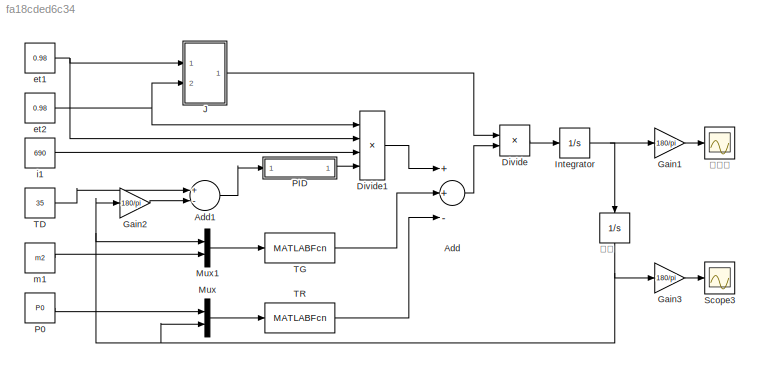
MODEL slx_fa18cded6c34
KIND model
BLOCK [Sum] Add
  InputSameDT = off
  Inputs = ++-
  OutDataTypeStr = Inherit: Inherit via internal rule
  Ports = [3, 1]
  SaturateOnIntegerOverflow = off
BLOCK [Sum] Add1
  InputSameDT = off
  Inputs = +-
  OutDataTypeStr = Inherit: Inherit via internal rule
  Ports = [2, 1]
  SaturateOnIntegerOverflow = off
BLOCK [Product] Divide
  InputSameDT = off
  Inputs = /*
  OutDataTypeStr = Inherit: Inherit via internal rule
  Ports = [2, 1]
  RndMeth = Floor
  SaturateOnIntegerOverflow = off
BLOCK [Product] Divide1
  InputSameDT = off
  Inputs = ****
  OutDataTypeStr = Inherit: Inherit via internal rule
  Ports = [4, 1]
  RndMeth = Floor
  SaturateOnIntegerOverflow = off
BLOCK [Gain] Gain1
  Gain = 180/pi
  OutDataTypeStr = Inherit: Inherit via internal rule
  ParamDataTypeStr = Inherit: Inherit via internal rule
  SaturateOnIntegerOverflow = off
BLOCK [Gain] Gain2
  Gain = 180/pi
  OutDataTypeStr = Inherit: Inherit via internal rule
  ParamDataTypeStr = Inherit: Inherit via internal rule
  SaturateOnIntegerOverflow = off
BLOCK [Gain] Gain3
  Gain = 180/pi
  OutDataTypeStr = Inherit: Inherit via internal rule
  ParamDataTypeStr = Inherit: Inherit via internal rule
  SaturateOnIntegerOverflow = off
BLOCK [Integrator] Integrator
  Ports = [1, 1]
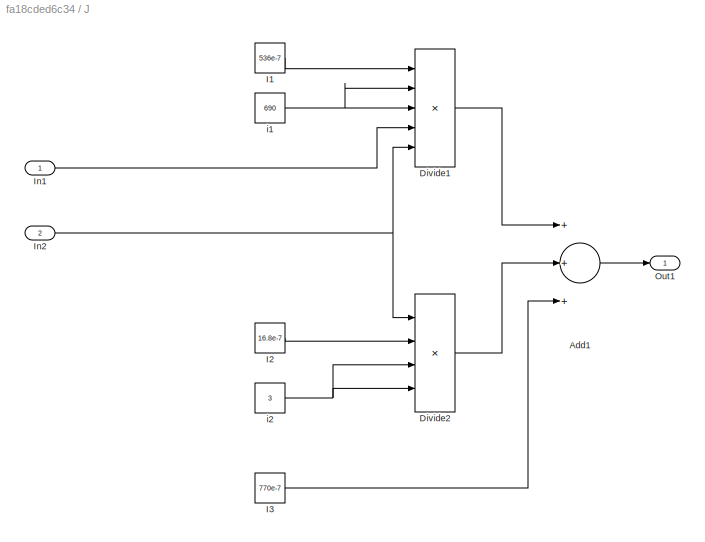
BLOCK [SubSystem] J
  Ports = [2, 1]
  RequestExecContextInheritance = off
BLOCK [Sum] J/Add1
  InputSameDT = off
  Inputs = +++
  OutDataTypeStr = Inherit: Inherit via internal rule
  Ports = [3, 1]
  SaturateOnIntegerOverflow = off
BLOCK [Product] J/Divide1
  InputSameDT = off
  Inputs = *****
  OutDataTypeStr = Inherit: Inherit via internal rule
  Ports = [5, 1]
  RndMeth = Floor
  SaturateOnIntegerOverflow = off
BLOCK [Product] J/Divide2
  InputSameDT = off
  Inputs = ****
  OutDataTypeStr = Inherit: Inherit via internal rule
  Ports = [4, 1]
  RndMeth = Floor
  SaturateOnIntegerOverflow = off
BLOCK [Constant] J/I1
  Value = 536e-7
BLOCK [Constant] J/I2
  Value = 16.8e-7
BLOCK [Constant] J/I3
  Value = 770e-7
BLOCK [Inport] J/In1
  IconDisplay = Port number
BLOCK [Inport] J/In2
  IconDisplay = Port number
  Port = 2
BLOCK [Outport] J/Out1
  IconDisplay = Port number
BLOCK [Constant] J/i1
  Value = 690
BLOCK [Constant] J/i2
  Value = 3
BLOCK [Mux] Mux
  DisplayOption = bar
  Inputs = 2
  Ports = [2, 1]
BLOCK [Mux] Mux1
  DisplayOption = bar
  Inputs = 2
  Ports = [2, 1]
BLOCK [Constant] P0 
  Value = P0
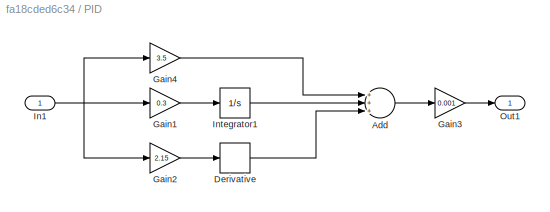
BLOCK [SubSystem] PID
  Ports = [1, 1]
  RequestExecContextInheritance = off
BLOCK [Sum] PID/Add
  InputSameDT = off
  Inputs = +++
  OutDataTypeStr = Inherit: Inherit via internal rule
  Ports = [3, 1]
  SaturateOnIntegerOverflow = off
BLOCK [Derivative] PID/Derivative
BLOCK [Gain] PID/Gain1
  Gain = 0.3
  OutDataTypeStr = Inherit: Inherit via internal rule
  ParamDataTypeStr = Inherit: Inherit via internal rule
  SaturateOnIntegerOverflow = off
BLOCK [Gain] PID/Gain2
  Gain = 2.15
  OutDataTypeStr = Inherit: Inherit via internal rule
  ParamDataTypeStr = Inherit: Inherit via internal rule
  SaturateOnIntegerOverflow = off
BLOCK [Gain] PID/Gain3
  Gain = 0.001
  OutDataTypeStr = Inherit: Inherit via internal rule
  ParamDataTypeStr = Inherit: Inherit via internal rule
  SaturateOnIntegerOverflow = off
BLOCK [Gain] PID/Gain4
  Gain = 3.5
  OutDataTypeStr = Inherit: Inherit via internal rule
  ParamDataTypeStr = Inherit: Inherit via internal rule
  SaturateOnIntegerOverflow = off
BLOCK [Inport] PID/In1
  IconDisplay = Port number
BLOCK [Integrator] PID/Integrator1
  Ports = [1, 1]
BLOCK [Outport] PID/Out1
  IconDisplay = Port number
BLOCK [Scope] Scope3
  DataFormat = StructureWithTime
  Floating = off
  NumInputPorts = 1
  Ports = [1]
  SaveName = jiaodu
  SaveToWorkspace = on
  ShowLegends = off
  TimeRange = 1.5
  YMax = 40
  YMin = 0
BLOCK [Constant] TD
  Value = 35
BLOCK [MATLABFcn] TG
  MATLABFcn = zhongliju(u(1),u(2))
  Ports = [1, 1]
BLOCK [MATLABFcn] TR 
  MATLABFcn = zhifanliju(u(2),u(1))
  Output1D = off
  Ports = [1, 1]
BLOCK [Constant] et1
  Value = 0.98
BLOCK [Constant] et2
  Value = 0.98
BLOCK [Constant] i1
  Value = 690
BLOCK [Constant] m1 
  Value = m2
BLOCK [Integrator] 角度
  Ports = [1, 1]
BLOCK [Scope] 角速度
  DataFormat = Structure
  Floating = off
  NumInputPorts = 1
  Ports = [1]
  SaveName = jiaosudu
  SaveToWorkspace = on
  ShowLegends = off
  ZoomMode = xonly
LINE Add1:1 -> PID:1
LINE Add:1 -> Divide:2
LINE Divide1:1 -> Add:1
LINE Divide:1 -> Integrator:1
LINE Gain1:1 -> 角速度:1
LINE Gain2:1 -> Add1:2
LINE Gain3:1 -> Scope3:1
NET Integrator:1 -> Gain1:1, 角度:1
LINE J/Add1:1 -> J/Out1:1
LINE J/Divide1:1 -> J/Add1:1
LINE J/Divide2:1 -> J/Add1:2
LINE J/I1:1 -> J/Divide1:1
LINE J/I2:1 -> J/Divide2:2
LINE J/I3:1 -> J/Add1:3
LINE J/In1:1 -> J/Divide1:4
NET J/In2:1 -> J/Divide1:5, J/Divide2:1
NET J/i1:1 -> J/Divide1:2, J/Divide1:3
NET J/i2:1 -> J/Divide2:3, J/Divide2:4
LINE J:1 -> Divide:1
LINE Mux1:1 -> TG:1
LINE Mux:1 -> TR :1
LINE P0 :1 -> Mux:1
LINE PID/Add:1 -> PID/Gain3:1
LINE PID/Derivative:1 -> PID/Add:3
LINE PID/Gain1:1 -> PID/Integrator1:1
LINE PID/Gain2:1 -> PID/Derivative:1
LINE PID/Gain3:1 -> PID/Out1:1
LINE PID/Gain4:1 -> PID/Add:1
NET PID/In1:1 -> PID/Gain1:1, PID/Gain2:1, PID/Gain4:1
LINE PID/Integrator1:1 -> PID/Add:2
LINE PID:1 -> Divide1:4
LINE TD:1 -> Add1:1
LINE TG:1 -> Add:2
LINE TR :1 -> Add:3
NET et1:1 -> Divide1:2, J:1
NET et2:1 -> Divide1:1, J:2
LINE i1:1 -> Divide1:3
LINE m1 :1 -> Mux1:2
NET 角度:1 -> Gain2:1, Gain3:1, Mux1:1, Mux:2
note: NET lines group one-source signal fan-out (src -> all destinations, sorted); 1:1 wires keep LINE
